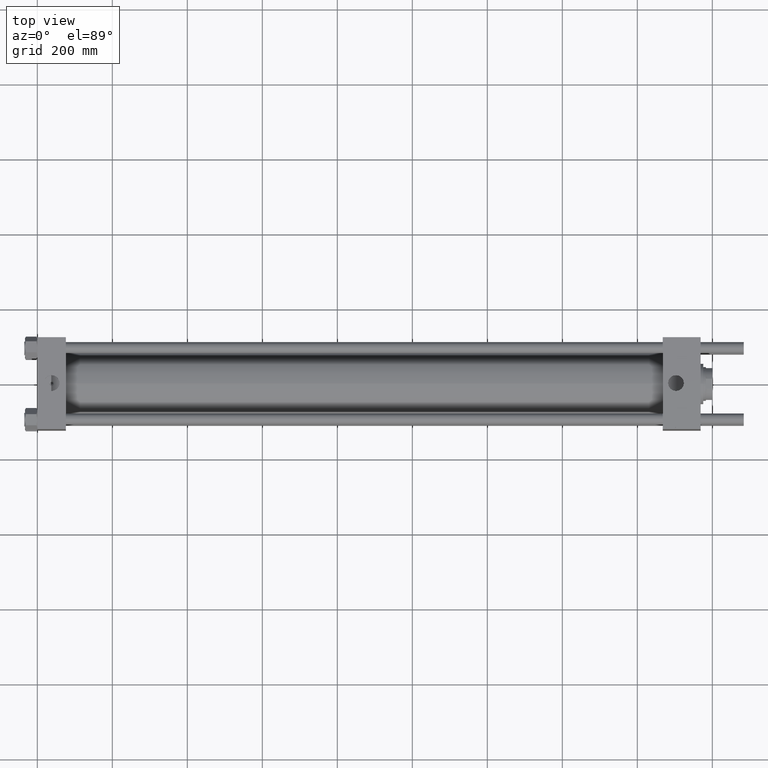
[diagram: clean part render]
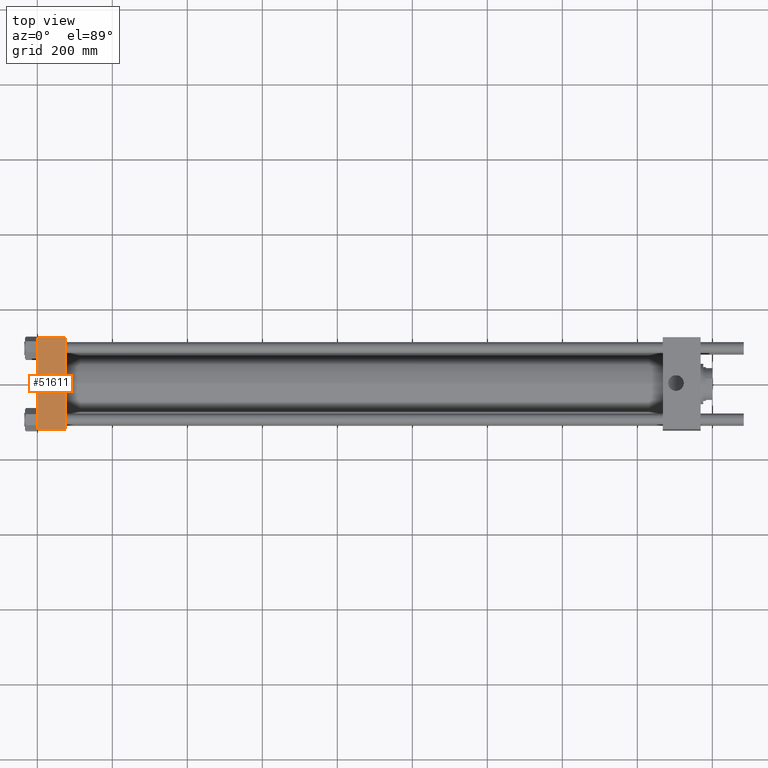
[diagram: same view with one face highlighted and labeled with its STEP entity id]
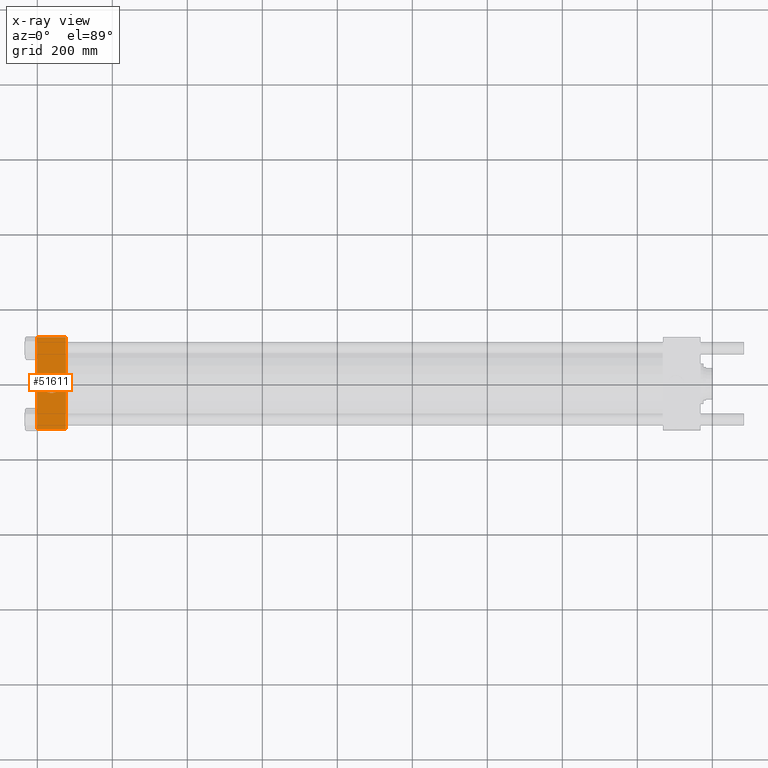
[diagram: x-ray of the same camera — body ghosted, the highlighted face saturated]
A machine part, top view. The second image highlights one B-rep face of the part: STEP entity #51611.
The next image is the same camera in x-ray: the body ghosted, the highlighted face saturated — about 0% of this face is hidden behind the body in this view.
In plain terms, the highlighted planar face has unit normal (0, 0, -1).
Its self-contained STEP definition (entity closure, byte-faithful):
#394 = VECTOR ( 'NONE', #53367, 1000.000000000000000 ) ;
#1088 = ORIENTED_EDGE ( 'NONE', *, *, #18477, .F. ) ;
#1906 = LINE ( 'NONE', #54857, #55916 ) ;
#2121 = VERTEX_POINT ( 'NONE', #52211 ) ;
#4286 = FACE_OUTER_BOUND ( 'NONE', #5541, .T. ) ;
#4455 = ORIENTED_EDGE ( 'NONE', *, *, #41569, .T. ) ;
#5531 = CARTESIAN_POINT ( 'NONE',  ( 38.00000000000000000, -8.673617379884038628E-15, 122.5000000000000142 ) ) ;
#5541 = EDGE_LOOP ( 'NONE', ( #9688, #4455, #24035, #21584 ) ) ;
#8334 = DIRECTION ( 'NONE',  ( 0.000000000000000000, 1.132880637372608740E-16, -1.000000000000000000 ) ) ;
#8775 = DIRECTION ( 'NONE',  ( 1.000000000000000000, 0.000000000000000000, 0.000000000000000000 ) ) ;
#9035 = VERTEX_POINT ( 'NONE', #34702 ) ;
#9688 = ORIENTED_EDGE ( 'NONE', *, *, #30897, .T. ) ;
#10257 = CIRCLE ( 'NONE', #14857, 26.00000000000000355 ) ;
#10660 = ORIENTED_EDGE ( 'NONE', *, *, #49996, .F. ) ;
#12794 = CARTESIAN_POINT ( 'NONE',  ( 38.00000000000000000, -8.673617379884038628E-15, 122.5000000000000142 ) ) ;
#13621 = AXIS2_PLACEMENT_3D ( 'NONE', #21624, #8334, #39284 ) ;
#14857 = AXIS2_PLACEMENT_3D ( 'NONE', #5531, #48946, #18814 ) ;
#16774 = VECTOR ( 'NONE', #28234, 1000.000000000000000 ) ;
#16988 = FACE_BOUND ( 'NONE', #21968, .T. ) ;
#17426 = DIRECTION ( 'NONE',  ( 0.000000000000000000, 0.000000000000000000, 1.000000000000000000 ) ) ;
#18195 = VERTEX_POINT ( 'NONE', #27022 ) ;
#18477 = EDGE_CURVE ( 'NONE', #9035, #18195, #10257, .T. ) ;
#18814 = DIRECTION ( 'NONE',  ( 1.000000000000000000, 0.000000000000000000, 0.000000000000000000 ) ) ;
#19696 = VERTEX_POINT ( 'NONE', #51476 ) ;
#20142 = AXIS2_PLACEMENT_3D ( 'NONE', #12794, #17426, #21768 ) ;
#20952 = EDGE_CURVE ( 'NONE', #28668, #19696, #28522, .T. ) ;
#21584 = ORIENTED_EDGE ( 'NONE', *, *, #38165, .T. ) ;
#21624 = CARTESIAN_POINT ( 'NONE',  ( 76.00000000000000000, 122.5000000000000568, 122.5000000000000284 ) ) ;
#21768 = DIRECTION ( 'NONE',  ( 1.000000000000000000, 0.000000000000000000, 0.000000000000000000 ) ) ;
#21968 = EDGE_LOOP ( 'NONE', ( #1088, #10660 ) ) ;
#24035 = ORIENTED_EDGE ( 'NONE', *, *, #20952, .F. ) ;
#24737 = CARTESIAN_POINT ( 'NONE',  ( 76.00000000000000000, 122.5000000000000568, 122.5000000000000284 ) ) ;
#27022 = CARTESIAN_POINT ( 'NONE',  ( 11.99999999999998934, -5.489535702100919253E-15, 122.5000000000000142 ) ) ;
#28234 = DIRECTION ( 'NONE',  ( 0.000000000000000000, -1.000000000000000000, -1.132880637372608740E-16 ) ) ;
#28522 = LINE ( 'NONE', #24737, #16774 ) ;
#28668 = VERTEX_POINT ( 'NONE', #43498 ) ;
#30897 = EDGE_CURVE ( 'NONE', #34488, #2121, #1906, .T. ) ;
#31629 = LINE ( 'NONE', #35103, #54124 ) ;
#34488 = VERTEX_POINT ( 'NONE', #42103 ) ;
#34702 = CARTESIAN_POINT ( 'NONE',  ( 64.00000000000000000, -8.673617379884038628E-15, 122.5000000000000142 ) ) ;
#35103 = CARTESIAN_POINT ( 'NONE',  ( 76.00000000000000000, -122.0000000000000284, 122.5000000000000000 ) ) ;
#38165 = EDGE_CURVE ( 'NONE', #28668, #34488, #51933, .T. ) ;
#39284 = DIRECTION ( 'NONE',  ( 0.000000000000000000, 1.000000000000000000, 1.132880637372608740E-16 ) ) ;
#41569 = EDGE_CURVE ( 'NONE', #2121, #19696, #31629, .T. ) ;
#42103 = CARTESIAN_POINT ( 'NONE',  ( 0.000000000000000000, 122.0000000000000568, 122.5000000000000284 ) ) ;
#43498 = CARTESIAN_POINT ( 'NONE',  ( 76.00000000000000000, 122.0000000000000568, 122.5000000000000284 ) ) ;
#45045 = DIRECTION ( 'NONE',  ( 0.000000000000000000, -1.000000000000000000, -1.132880637372608740E-16 ) ) ;
#47980 = PLANE ( 'NONE',  #13621 ) ;
#48946 = DIRECTION ( 'NONE',  ( 0.000000000000000000, 0.000000000000000000, 1.000000000000000000 ) ) ;
#49996 = EDGE_CURVE ( 'NONE', #18195, #9035, #56219, .T. ) ;
#51476 = CARTESIAN_POINT ( 'NONE',  ( 76.00000000000000000, -121.9999999999999716, 122.5000000000000000 ) ) ;
#51611 = ADVANCED_FACE ( 'NONE', ( #16988, #4286 ), #47980, .F. ) ;
#51933 = LINE ( 'NONE', #53079, #394 ) ;
#52211 = CARTESIAN_POINT ( 'NONE',  ( 0.000000000000000000, -121.9999999999999716, 122.5000000000000000 ) ) ;
#53079 = CARTESIAN_POINT ( 'NONE',  ( 0.000000000000000000, 122.0000000000000568, 122.5000000000000284 ) ) ;
#53367 = DIRECTION ( 'NONE',  ( -1.000000000000000000, 0.000000000000000000, 0.000000000000000000 ) ) ;
#54124 = VECTOR ( 'NONE', #8775, 1000.000000000000000 ) ;
#54857 = CARTESIAN_POINT ( 'NONE',  ( 0.000000000000000000, 122.5000000000000568, 122.5000000000000284 ) ) ;
#55916 = VECTOR ( 'NONE', #45045, 1000.000000000000000 ) ;
#56219 = CIRCLE ( 'NONE', #20142, 26.00000000000000355 ) ;